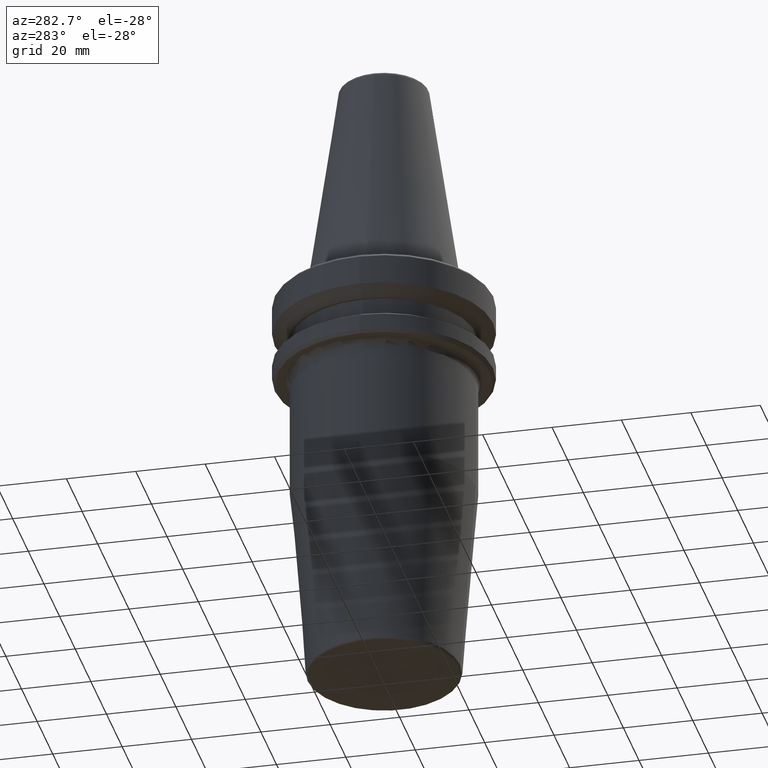
[diagram: clean part render]
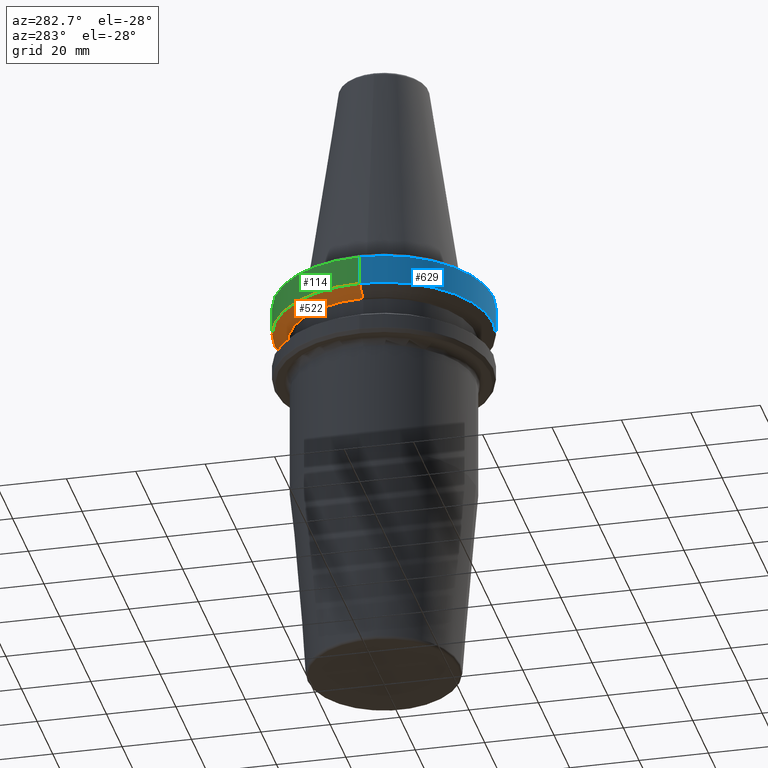
[diagram: same view with three faces highlighted in distinct colors, each labeled with its STEP entity id]
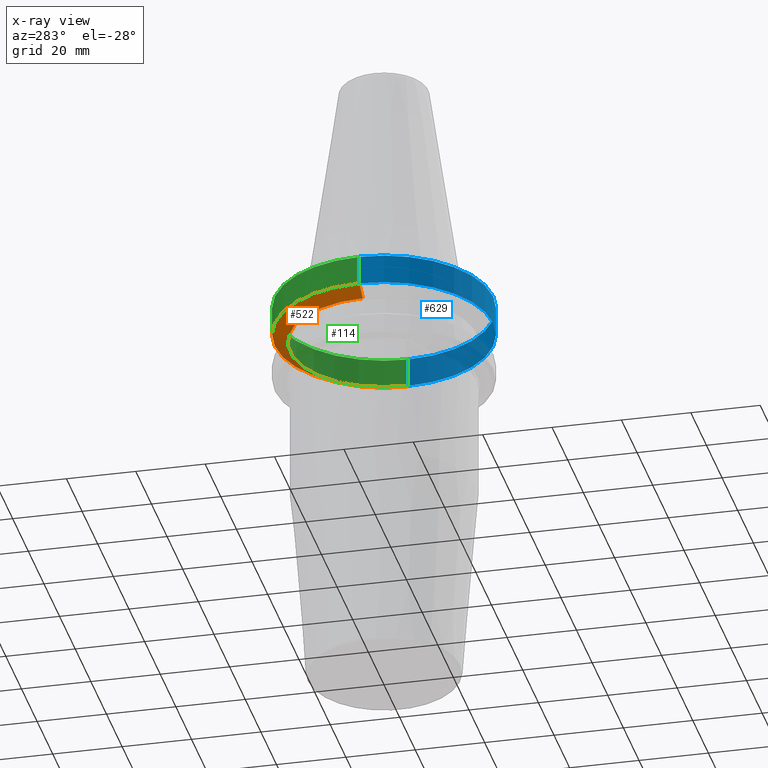
[diagram: x-ray of the same camera — body ghosted, the three highlighted faces saturated]
A machine part, auxiliary view with three faces highlighted in distinct colors.
The next image is the same camera in x-ray (body ghosted, the three faces saturated) — at least one of them is partly hidden behind the body in this view.
Their STEP definitions:

[orange] entity #522 — the highlighted conical surface has half-angle 60 deg.
#10 = CARTESIAN_POINT ( 'NONE',  ( 0.0000000000000000000, 0.0000000000000000000, -11.59985799368323700 ) ) ;
#26 = DIRECTION ( 'NONE',  ( -0.0000000000000000000, -0.0000000000000000000, 1.000000000000000000 ) ) ;
#86 = CARTESIAN_POINT ( 'NONE',  ( -31.50000000000000000, 3.857637417314162700E-015, -11.59985799368323700 ) ) ;
#175 = LINE ( 'NONE', #86, #717 ) ;
#180 = CARTESIAN_POINT ( 'NONE',  ( 31.50000000000000000, 0.0000000000000000000, -11.59985799368323700 ) ) ;
#197 = DIRECTION ( 'NONE',  ( -0.8660254037844393700, 1.060575238724907800E-016, 0.4999999999999985000 ) ) ;
#253 = EDGE_CURVE ( 'NONE', #658, #1093, #825, .T. ) ;
#256 = DIRECTION ( 'NONE',  ( 1.000000000000000000, 0.0000000000000000000, 0.0000000000000000000 ) ) ;
#274 = AXIS2_PLACEMENT_3D ( 'NONE', #965, #781, #972 ) ;
#298 = ORIENTED_EDGE ( 'NONE', *, *, #1114, .F. ) ;
#387 = CARTESIAN_POINT ( 'NONE',  ( -27.16962701892216000, 3.592478546794604700E-015, -14.10000000000000100 ) ) ;
#418 = VECTOR ( 'NONE', #1181, 1000.000000000000100 ) ;
#450 = ORIENTED_EDGE ( 'NONE', *, *, #253, .F. ) ;
#494 = EDGE_CURVE ( 'NONE', #801, #1276, #836, .T. ) ;
#522 = ADVANCED_FACE ( 'NONE', ( #810 ), #1257, .T. ) ;
#538 = ORIENTED_EDGE ( 'NONE', *, *, #1096, .T. ) ;
#578 = CARTESIAN_POINT ( 'NONE',  ( 27.16962701892216000, 0.0000000000000000000, -14.10000000000000100 ) ) ;
#642 = DIRECTION ( 'NONE',  ( -0.0000000000000000000, -0.0000000000000000000, 1.000000000000000000 ) ) ;
#655 = LINE ( 'NONE', #1083, #418 ) ;
#658 = VERTEX_POINT ( 'NONE', #180 ) ;
#669 = ORIENTED_EDGE ( 'NONE', *, *, #494, .T. ) ;
#674 = AXIS2_PLACEMENT_3D ( 'NONE', #10, #642, #956 ) ;
#717 = VECTOR ( 'NONE', #197, 1000.000000000000100 ) ;
#743 = CARTESIAN_POINT ( 'NONE',  ( 0.0000000000000000000, 0.0000000000000000000, -14.10000000000000100 ) ) ;
#781 = DIRECTION ( 'NONE',  ( -0.0000000000000000000, -0.0000000000000000000, 1.000000000000000000 ) ) ;
#801 = VERTEX_POINT ( 'NONE', #578 ) ;
#810 = FACE_OUTER_BOUND ( 'NONE', #1129, .T. ) ;
#825 = CIRCLE ( 'NONE', #674, 31.50000000000000000 ) ;
#836 = CIRCLE ( 'NONE', #1228, 27.16962701892216000 ) ;
#956 = DIRECTION ( 'NONE',  ( 1.000000000000000000, 0.0000000000000000000, 0.0000000000000000000 ) ) ;
#965 = CARTESIAN_POINT ( 'NONE',  ( 0.0000000000000000000, 0.0000000000000000000, -11.59985799368323700 ) ) ;
#972 = DIRECTION ( 'NONE',  ( 1.000000000000000000, 0.0000000000000000000, 0.0000000000000000000 ) ) ;
#1083 = CARTESIAN_POINT ( 'NONE',  ( 31.50000000000000000, 0.0000000000000000000, -11.59985799368323700 ) ) ;
#1093 = VERTEX_POINT ( 'NONE', #1175 ) ;
#1096 = EDGE_CURVE ( 'NONE', #1276, #1093, #175, .T. ) ;
#1114 = EDGE_CURVE ( 'NONE', #801, #658, #655, .T. ) ;
#1129 = EDGE_LOOP ( 'NONE', ( #669, #538, #450, #298 ) ) ;
#1175 = CARTESIAN_POINT ( 'NONE',  ( -31.50000000000000000, 3.857637417314162700E-015, -11.59985799368323700 ) ) ;
#1181 = DIRECTION ( 'NONE',  ( 0.8660254037844393700, 0.0000000000000000000, 0.4999999999999985000 ) ) ;
#1228 = AXIS2_PLACEMENT_3D ( 'NONE', #743, #26, #256 ) ;
#1257 = CONICAL_SURFACE ( 'NONE', #274, 31.50000000000000000, 1.047197551196599400 ) ;
#1276 = VERTEX_POINT ( 'NONE', #387 ) ;

[blue] entity #629 — the highlighted cylindrical surface (partial cylindrical patch) has radius 31.5 mm, axis along (-0, -0, 1).
#3 = CARTESIAN_POINT ( 'NONE',  ( -31.49999999999999300, 3.857637417314161900E-015, -3.165685424949243700 ) ) ;
#7 = FACE_OUTER_BOUND ( 'NONE', #701, .T. ) ;
#15 = LINE ( 'NONE', #911, #788 ) ;
#19 = DIRECTION ( 'NONE',  ( 1.000000000000000000, 0.0000000000000000000, 0.0000000000000000000 ) ) ;
#74 = DIRECTION ( 'NONE',  ( -0.0000000000000000000, -0.0000000000000000000, 1.000000000000000000 ) ) ;
#106 = DIRECTION ( 'NONE',  ( -0.0000000000000000000, -0.0000000000000000000, 1.000000000000000000 ) ) ;
#159 = VERTEX_POINT ( 'NONE', #1091 ) ;
#180 = CARTESIAN_POINT ( 'NONE',  ( 31.50000000000000000, 0.0000000000000000000, -11.59985799368323700 ) ) ;
#191 = DIRECTION ( 'NONE',  ( -0.0000000000000000000, -0.0000000000000000000, 1.000000000000000000 ) ) ;
#195 = DIRECTION ( 'NONE',  ( -0.0000000000000000000, -0.0000000000000000000, 1.000000000000000000 ) ) ;
#251 = VERTEX_POINT ( 'NONE', #3 ) ;
#273 = CIRCLE ( 'NONE', #459, 31.49999999999999300 ) ;
#340 = CARTESIAN_POINT ( 'NONE',  ( 0.0000000000000000000, 0.0000000000000000000, 69.75694866325665100 ) ) ;
#391 = DIRECTION ( 'NONE',  ( 1.000000000000000000, 0.0000000000000000000, 0.0000000000000000000 ) ) ;
#459 = AXIS2_PLACEMENT_3D ( 'NONE', #583, #191, #19 ) ;
#488 = CIRCLE ( 'NONE', #608, 31.50000000000000000 ) ;
#553 = EDGE_CURVE ( 'NONE', #251, #159, #273, .T. ) ;
#567 = ORIENTED_EDGE ( 'NONE', *, *, #1265, .F. ) ;
#583 = CARTESIAN_POINT ( 'NONE',  ( 0.0000000000000000000, 0.0000000000000000000, -3.165685424949243700 ) ) ;
#607 = ORIENTED_EDGE ( 'NONE', *, *, #1045, .T. ) ;
#608 = AXIS2_PLACEMENT_3D ( 'NONE', #979, #74, #391 ) ;
#629 = ADVANCED_FACE ( 'NONE', ( #7 ), #782, .T. ) ;
#658 = VERTEX_POINT ( 'NONE', #180 ) ;
#701 = EDGE_LOOP ( 'NONE', ( #567, #607, #775, #1224 ) ) ;
#708 = CARTESIAN_POINT ( 'NONE',  ( 31.50000000000000000, 0.0000000000000000000, 69.75694866325665100 ) ) ;
#775 = ORIENTED_EDGE ( 'NONE', *, *, #1133, .T. ) ;
#782 = CYLINDRICAL_SURFACE ( 'NONE', #1041, 31.50000000000000000 ) ;
#788 = VECTOR ( 'NONE', #106, 1000.000000000000000 ) ;
#911 = CARTESIAN_POINT ( 'NONE',  ( -31.50000000000000000, 3.857637417314162700E-015, 69.75694866325665100 ) ) ;
#918 = DIRECTION ( 'NONE',  ( 1.000000000000000000, 0.0000000000000000000, 0.0000000000000000000 ) ) ;
#979 = CARTESIAN_POINT ( 'NONE',  ( 0.0000000000000000000, 0.0000000000000000000, -11.59985799368323700 ) ) ;
#1041 = AXIS2_PLACEMENT_3D ( 'NONE', #340, #195, #918 ) ;
#1045 = EDGE_CURVE ( 'NONE', #1093, #658, #488, .T. ) ;
#1091 = CARTESIAN_POINT ( 'NONE',  ( 31.49999999999999300, 0.0000000000000000000, -3.165685424949243700 ) ) ;
#1093 = VERTEX_POINT ( 'NONE', #1175 ) ;
#1127 = VECTOR ( 'NONE', #1274, 1000.000000000000000 ) ;
#1133 = EDGE_CURVE ( 'NONE', #658, #159, #1157, .T. ) ;
#1157 = LINE ( 'NONE', #708, #1127 ) ;
#1175 = CARTESIAN_POINT ( 'NONE',  ( -31.50000000000000000, 3.857637417314162700E-015, -11.59985799368323700 ) ) ;
#1224 = ORIENTED_EDGE ( 'NONE', *, *, #553, .F. ) ;
#1265 = EDGE_CURVE ( 'NONE', #1093, #251, #15, .T. ) ;
#1274 = DIRECTION ( 'NONE',  ( -0.0000000000000000000, -0.0000000000000000000, 1.000000000000000000 ) ) ;

[green] entity #114 — the highlighted cylindrical surface (partial cylindrical patch) has radius 31.5 mm, axis along (-0, -0, 1).
#3 = CARTESIAN_POINT ( 'NONE',  ( -31.49999999999999300, 3.857637417314161900E-015, -3.165685424949243700 ) ) ;
#10 = CARTESIAN_POINT ( 'NONE',  ( 0.0000000000000000000, 0.0000000000000000000, -11.59985799368323700 ) ) ;
#15 = LINE ( 'NONE', #911, #788 ) ;
#75 = FACE_OUTER_BOUND ( 'NONE', #209, .T. ) ;
#106 = DIRECTION ( 'NONE',  ( -0.0000000000000000000, -0.0000000000000000000, 1.000000000000000000 ) ) ;
#114 = ADVANCED_FACE ( 'NONE', ( #75 ), #817, .T. ) ;
#159 = VERTEX_POINT ( 'NONE', #1091 ) ;
#173 = ORIENTED_EDGE ( 'NONE', *, *, #1133, .F. ) ;
#180 = CARTESIAN_POINT ( 'NONE',  ( 31.50000000000000000, 0.0000000000000000000, -11.59985799368323700 ) ) ;
#209 = EDGE_LOOP ( 'NONE', ( #1060, #653, #1249, #173 ) ) ;
#235 = DIRECTION ( 'NONE',  ( 1.000000000000000000, 0.0000000000000000000, 0.0000000000000000000 ) ) ;
#251 = VERTEX_POINT ( 'NONE', #3 ) ;
#253 = EDGE_CURVE ( 'NONE', #658, #1093, #825, .T. ) ;
#260 = CARTESIAN_POINT ( 'NONE',  ( 0.0000000000000000000, 0.0000000000000000000, 69.75694866325665100 ) ) ;
#289 = CARTESIAN_POINT ( 'NONE',  ( 0.0000000000000000000, 0.0000000000000000000, -3.165685424949243700 ) ) ;
#398 = DIRECTION ( 'NONE',  ( 1.000000000000000000, 0.0000000000000000000, 0.0000000000000000000 ) ) ;
#642 = DIRECTION ( 'NONE',  ( -0.0000000000000000000, -0.0000000000000000000, 1.000000000000000000 ) ) ;
#653 = ORIENTED_EDGE ( 'NONE', *, *, #1265, .T. ) ;
#658 = VERTEX_POINT ( 'NONE', #180 ) ;
#674 = AXIS2_PLACEMENT_3D ( 'NONE', #10, #642, #956 ) ;
#708 = CARTESIAN_POINT ( 'NONE',  ( 31.50000000000000000, 0.0000000000000000000, 69.75694866325665100 ) ) ;
#788 = VECTOR ( 'NONE', #106, 1000.000000000000000 ) ;
#817 = CYLINDRICAL_SURFACE ( 'NONE', #1020, 31.50000000000000000 ) ;
#825 = CIRCLE ( 'NONE', #674, 31.50000000000000000 ) ;
#859 = AXIS2_PLACEMENT_3D ( 'NONE', #289, #984, #398 ) ;
#911 = CARTESIAN_POINT ( 'NONE',  ( -31.50000000000000000, 3.857637417314162700E-015, 69.75694866325665100 ) ) ;
#956 = DIRECTION ( 'NONE',  ( 1.000000000000000000, 0.0000000000000000000, 0.0000000000000000000 ) ) ;
#984 = DIRECTION ( 'NONE',  ( -0.0000000000000000000, -0.0000000000000000000, 1.000000000000000000 ) ) ;
#1020 = AXIS2_PLACEMENT_3D ( 'NONE', #260, #1170, #235 ) ;
#1060 = ORIENTED_EDGE ( 'NONE', *, *, #253, .T. ) ;
#1079 = EDGE_CURVE ( 'NONE', #159, #251, #1223, .T. ) ;
#1091 = CARTESIAN_POINT ( 'NONE',  ( 31.49999999999999300, 0.0000000000000000000, -3.165685424949243700 ) ) ;
#1093 = VERTEX_POINT ( 'NONE', #1175 ) ;
#1127 = VECTOR ( 'NONE', #1274, 1000.000000000000000 ) ;
#1133 = EDGE_CURVE ( 'NONE', #658, #159, #1157, .T. ) ;
#1157 = LINE ( 'NONE', #708, #1127 ) ;
#1170 = DIRECTION ( 'NONE',  ( -0.0000000000000000000, -0.0000000000000000000, 1.000000000000000000 ) ) ;
#1175 = CARTESIAN_POINT ( 'NONE',  ( -31.50000000000000000, 3.857637417314162700E-015, -11.59985799368323700 ) ) ;
#1223 = CIRCLE ( 'NONE', #859, 31.49999999999999300 ) ;
#1249 = ORIENTED_EDGE ( 'NONE', *, *, #1079, .F. ) ;
#1265 = EDGE_CURVE ( 'NONE', #1093, #251, #15, .T. ) ;
#1274 = DIRECTION ( 'NONE',  ( -0.0000000000000000000, -0.0000000000000000000, 1.000000000000000000 ) ) ;